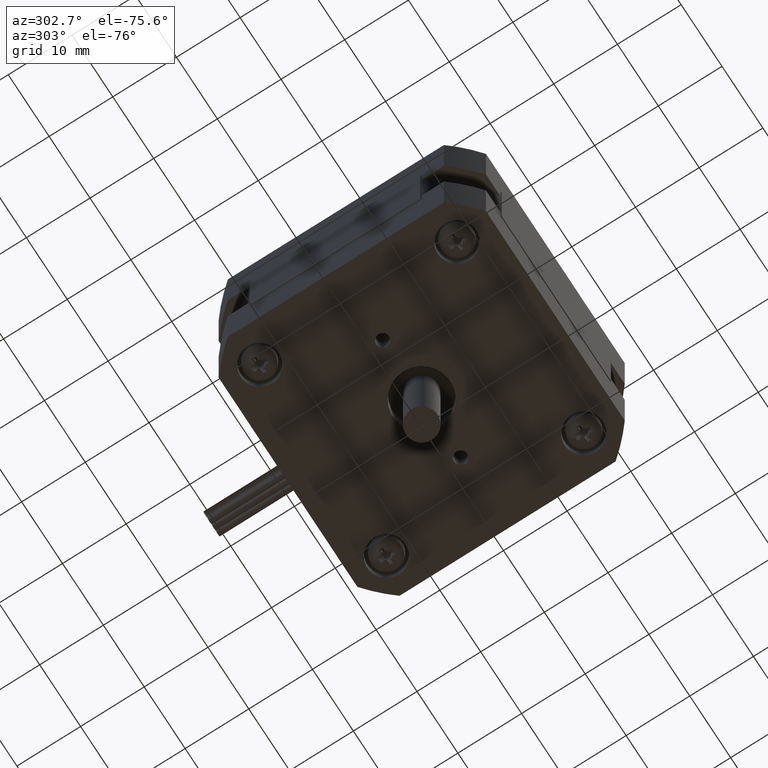
[diagram: clean part render]
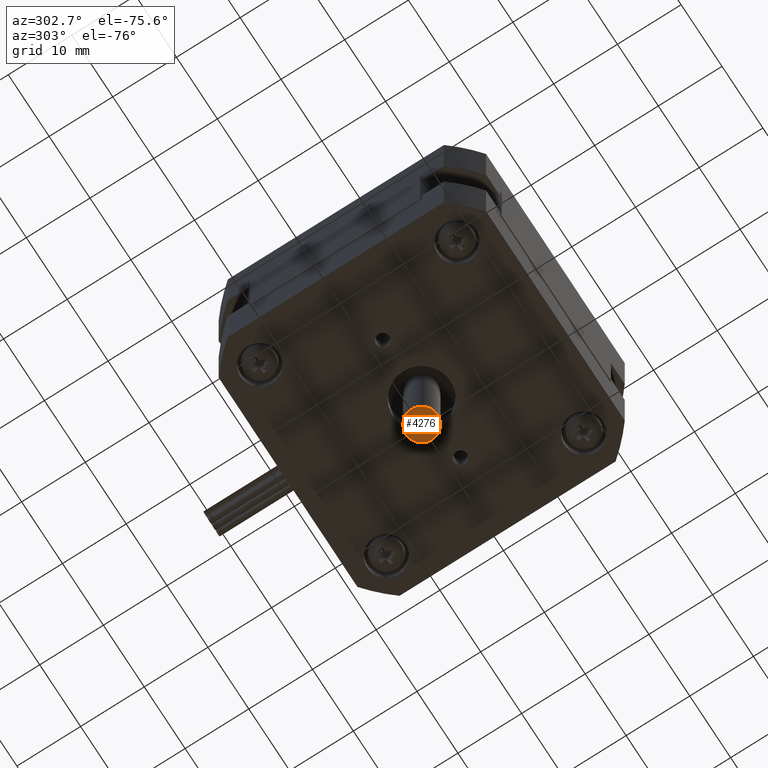
[diagram: same view with one face highlighted and labeled with its STEP entity id]
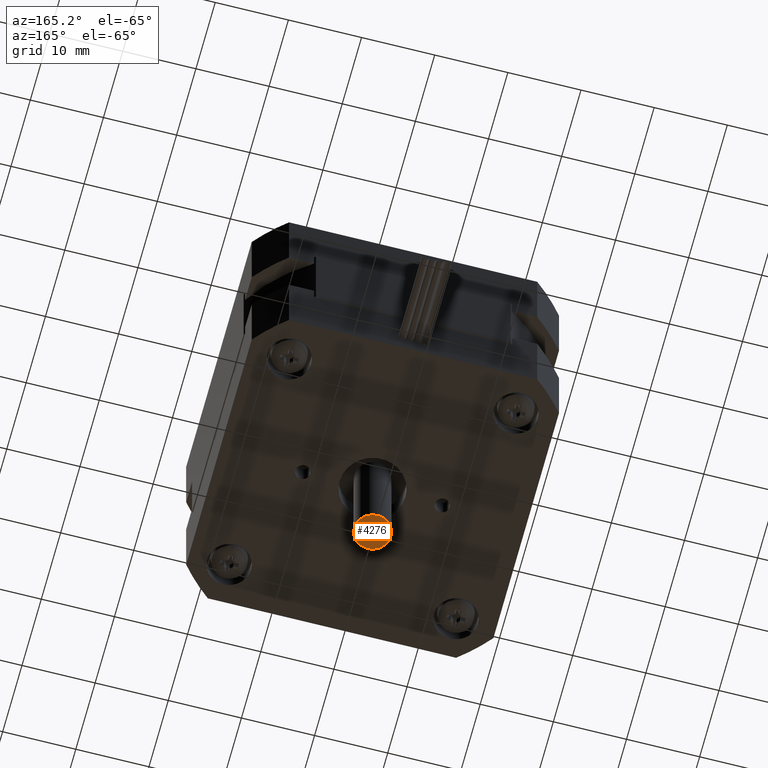
[diagram: same view with one face highlighted and labeled with its STEP entity id]
A machine part, auxiliary view. The second image highlights one B-rep face of the part: STEP entity #4276.
A second angle (auxiliary view) of the same face is appended — the face is thin or edge-on in the first view.
In plain terms, the highlighted planar face has unit normal (-0, 0, -1).
Its self-contained STEP definition (entity closure, byte-faithful):
#734=PLANE('',#4802);
#1132=FACE_OUTER_BOUND('',#1480,.T.);
#1480=EDGE_LOOP('',(#3782));
#1724=CIRCLE('',#4800,2.5);
#2112=VERTEX_POINT('',#7441);
#2672=EDGE_CURVE('',#2112,#2112,#1724,.T.);
#3782=ORIENTED_EDGE('',*,*,#2672,.T.);
#4276=ADVANCED_FACE('',(#1132),#734,.T.);
#4800=AXIS2_PLACEMENT_3D('',#7442,#6048,#6049);
#4802=AXIS2_PLACEMENT_3D('',#7444,#6052,#6053);
#6048=DIRECTION('center_axis',(-1.31838984174237E-16,1.0862244886344E-31,
-1.));
#6049=DIRECTION('ref_axis',(-1.,6.93889390390723E-17,1.31838984174237E-16));
#6052=DIRECTION('center_axis',(-1.31838984174237E-16,1.0862244886344E-31,
-1.));
#6053=DIRECTION('ref_axis',(-1.,6.93889390390723E-17,0.));
#7441=CARTESIAN_POINT('',(2.5,1.47959960383819E-14,-38.));
#7442=CARTESIAN_POINT('Origin',(1.8404198393467E-15,1.46633066861927E-14,
-38.));
#7444=CARTESIAN_POINT('Origin',(1.8404198393467E-15,1.46633066861927E-14,
-38.));